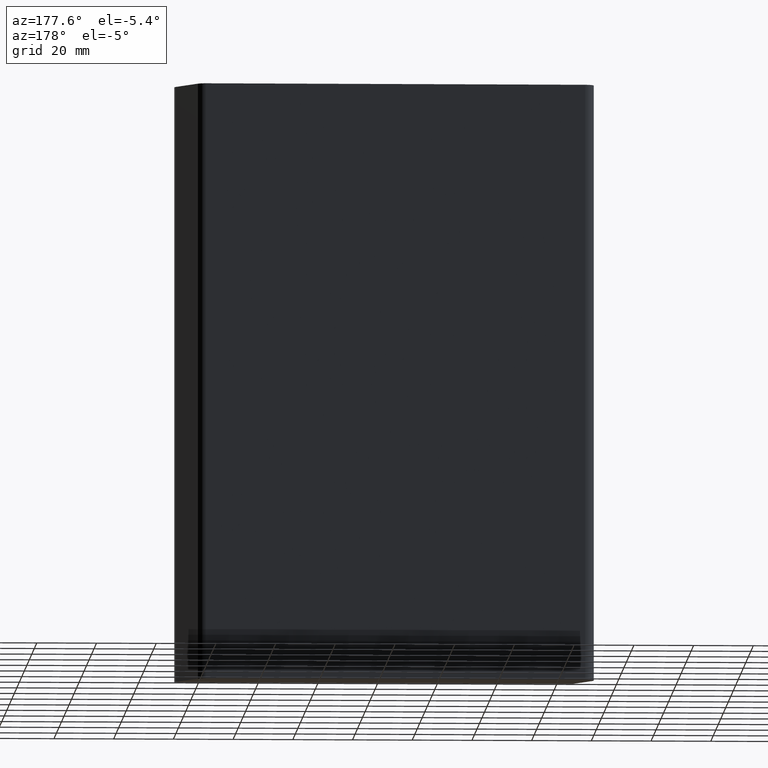
[diagram: clean part render]
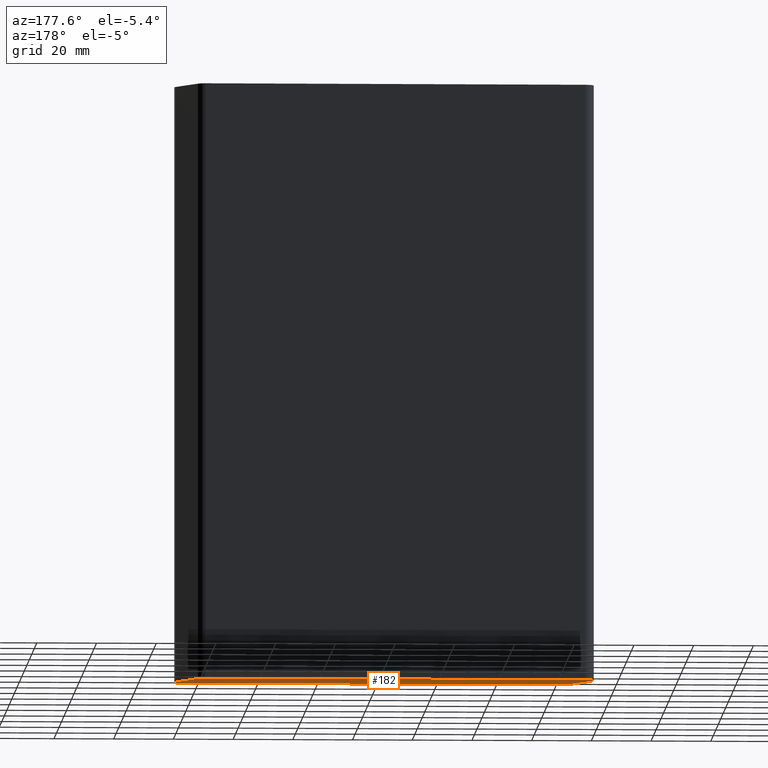
[diagram: same view with one face highlighted and labeled with its STEP entity id]
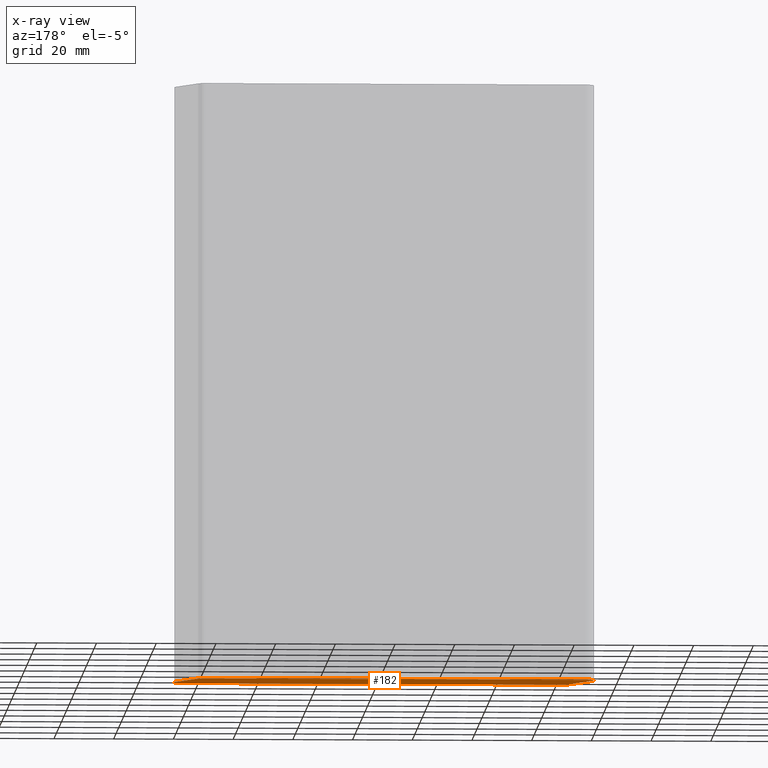
[diagram: x-ray of the same camera — body ghosted, the highlighted face saturated]
A machine part, auxiliary view. The second image highlights one B-rep face of the part: STEP entity #182.
The next image is the same camera in x-ray: the body ghosted, the highlighted face saturated — about 0% of this face is hidden behind the body in this view.
In plain terms, the highlighted planar face has unit normal (0, 0, 1).
Its self-contained STEP definition (entity closure, byte-faithful):
#15=CIRCLE('',#199,3.00000000000001);
#17=CIRCLE('',#203,3.);
#19=CIRCLE('',#207,2.99999999999999);
#21=CIRCLE('',#211,3.);
#36=FACE_OUTER_BOUND('',#46,.T.);
#46=EDGE_LOOP('',(#159,#160,#161,#162,#163,#164,#165,#166));
#47=LINE('',#273,#63);
#52=LINE('',#287,#68);
#56=LINE('',#299,#72);
#60=LINE('',#311,#76);
#63=VECTOR('',#219,10.);
#68=VECTOR('',#232,10.);
#72=VECTOR('',#244,10.);
#76=VECTOR('',#256,10.);
#79=VERTEX_POINT('',#271);
#80=VERTEX_POINT('',#272);
#83=VERTEX_POINT('',#280);
#85=VERTEX_POINT('',#286);
#87=VERTEX_POINT('',#292);
#89=VERTEX_POINT('',#298);
#91=VERTEX_POINT('',#304);
#93=VERTEX_POINT('',#310);
#95=EDGE_CURVE('',#79,#80,#47,.T.);
#99=EDGE_CURVE('',#83,#80,#15,.T.);
#102=EDGE_CURVE('',#85,#83,#52,.T.);
#105=EDGE_CURVE('',#87,#85,#17,.T.);
#108=EDGE_CURVE('',#89,#87,#56,.T.);
#111=EDGE_CURVE('',#91,#89,#19,.T.);
#114=EDGE_CURVE('',#91,#93,#60,.T.);
#117=EDGE_CURVE('',#79,#93,#21,.T.);
#159=ORIENTED_EDGE('',*,*,#117,.F.);
#160=ORIENTED_EDGE('',*,*,#95,.T.);
#161=ORIENTED_EDGE('',*,*,#99,.F.);
#162=ORIENTED_EDGE('',*,*,#102,.F.);
#163=ORIENTED_EDGE('',*,*,#105,.F.);
#164=ORIENTED_EDGE('',*,*,#108,.F.);
#165=ORIENTED_EDGE('',*,*,#111,.F.);
#166=ORIENTED_EDGE('',*,*,#114,.T.);
#172=PLANE('',#214);
#182=ADVANCED_FACE('',(#36),#172,.F.);
#199=AXIS2_PLACEMENT_3D('',#281,#225,#226);
#203=AXIS2_PLACEMENT_3D('',#293,#237,#238);
#207=AXIS2_PLACEMENT_3D('',#305,#249,#250);
#211=AXIS2_PLACEMENT_3D('',#316,#261,#262);
#214=AXIS2_PLACEMENT_3D('',#319,#267,#268);
#219=DIRECTION('',(1.,1.95399507220231E-9,0.));
#225=DIRECTION('center_axis',(0.,0.,1.));
#226=DIRECTION('ref_axis',(0.866025402866326,0.500000001590219,0.));
#232=DIRECTION('',(-0.500000001590219,0.866025402866325,0.));
#237=DIRECTION('center_axis',(0.,0.,1.));
#238=DIRECTION('ref_axis',(1.8362259860775E-9,-1.,0.));
#244=DIRECTION('',(1.,1.83622643745109E-9,0.));
#249=DIRECTION('center_axis',(0.,0.,1.));
#250=DIRECTION('ref_axis',(-0.866025403784439,-0.5,0.));
#256=DIRECTION('',(-0.5,0.866025403784439,0.));
#261=DIRECTION('center_axis',(0.,0.,1.));
#262=DIRECTION('ref_axis',(-1.95399548393501E-9,1.,0.));
#267=DIRECTION('center_axis',(0.,0.,1.));
#268=DIRECTION('ref_axis',(1.,0.,0.));
#271=CARTESIAN_POINT('',(-70.4641016209989,17.9999998642482,0.));
#272=CARTESIAN_POINT('',(56.6076951217249,18.0000001125459,0.));
#273=CARTESIAN_POINT('',(-70.4641016209989,17.9999998642482,0.));
#280=CARTESIAN_POINT('',(59.2057713361858,16.5000001173165,0.));
#281=CARTESIAN_POINT('Origin',(56.6076951275869,15.0000001125459,0.));
#286=CARTESIAN_POINT('',(66.1339745934621,4.50000012143695,0.));
#287=CARTESIAN_POINT('',(66.1339745934621,4.50000012143695,0.));
#292=CARTESIAN_POINT('',(63.5358983903718,1.16666296623436E-7,0.));
#293=CARTESIAN_POINT('Origin',(63.5358983848631,3.0000001166663,0.));
#298=CARTESIAN_POINT('',(-63.5358983903717,-1.16666296623436E-7,0.));
#299=CARTESIAN_POINT('',(-63.5358983903717,-1.16666296351607E-7,0.));
#304=CARTESIAN_POINT('',(-66.1339746072337,1.4999998833337,0.));
#305=CARTESIAN_POINT('Origin',(-63.5358983958804,2.9999998833337,0.));
#310=CARTESIAN_POINT('',(-73.0621778264902,13.4999998642482,0.));
#311=CARTESIAN_POINT('',(-66.1339746072337,1.4999998833337,0.));
#316=CARTESIAN_POINT('Origin',(-70.4641016151369,14.9999998642482,0.));
#319=CARTESIAN_POINT('Origin',(-3.46410161513692,8.9999999979398,0.));